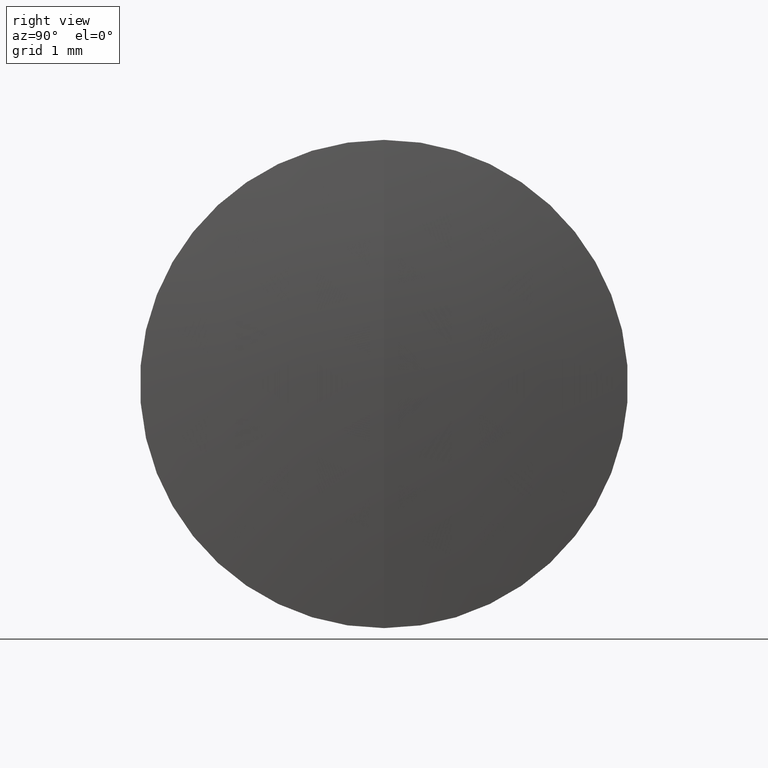
[diagram: clean part render]
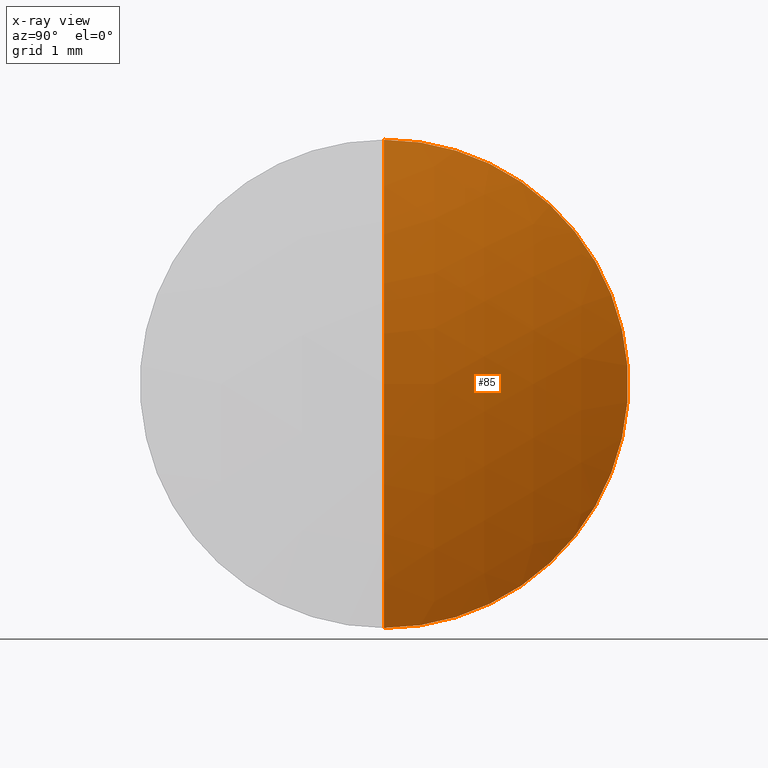
[diagram: x-ray — body ghosted, one internal face saturated and labeled with its STEP entity id]
A machine part, right view, then the same camera in x-ray: the body is ghosted and one INTERNAL B-rep face — a face not visible from any outside direction — is saturated and labeled: STEP entity #85.
In plain terms, the highlighted spherical surface has radius 9.2 mm.
Its self-contained STEP definition (entity closure, byte-faithful):
#4 = EDGE_CURVE ( 'NONE', #117, #208, #312, .T. ) ;
#21 = ORIENTED_EDGE ( 'NONE', *, *, #4, .F. ) ;
#39 = AXIS2_PLACEMENT_3D ( 'NONE', #75, #233, #244 ) ;
#47 = SPHERICAL_SURFACE ( 'NONE', #345, 9.199999999999999300 ) ;
#68 = FACE_OUTER_BOUND ( 'NONE', #204, .T. ) ;
#71 = CARTESIAN_POINT ( 'NONE',  ( 1.655750400079076800, 0.0000000000000000000, 4.000000000000000000 ) ) ;
#75 = CARTESIAN_POINT ( 'NONE',  ( 1.655750400079076800, 0.0000000000000000000, 0.0000000000000000000 ) ) ;
#85 = ADVANCED_FACE ( 'NONE', ( #68 ), #47, .T. ) ;
#86 = EDGE_CURVE ( 'NONE', #288, #208, #313, .T. ) ;
#92 = DIRECTION ( 'NONE',  ( 0.0000000000000000000, 0.0000000000000000000, 1.000000000000000000 ) ) ;
#100 = CARTESIAN_POINT ( 'NONE',  ( -6.629175670804114500, 0.0000000000000000000, 1.127419418155393700E-016 ) ) ;
#112 = CARTESIAN_POINT ( 'NONE',  ( 1.655750400079076800, 4.898587196589412800E-016, -4.000000000000000000 ) ) ;
#116 = EDGE_CURVE ( 'NONE', #288, #117, #254, .T. ) ;
#117 = VERTEX_POINT ( 'NONE', #71 ) ;
#118 = DIRECTION ( 'NONE',  ( 0.0000000000000000000, -1.224646799147353200E-016, 1.000000000000000000 ) ) ;
#121 = AXIS2_PLACEMENT_3D ( 'NONE', #185, #347, #125 ) ;
#125 = DIRECTION ( 'NONE',  ( 0.0000000000000000000, 0.0000000000000000000, -1.000000000000000000 ) ) ;
#138 = ORIENTED_EDGE ( 'NONE', *, *, #86, .T. ) ;
#176 = CARTESIAN_POINT ( 'NONE',  ( -6.629175670804114500, 0.0000000000000000000, 1.127419418155393700E-016 ) ) ;
#185 = CARTESIAN_POINT ( 'NONE',  ( -6.629175670804114500, 0.0000000000000000000, 1.127419418155393700E-016 ) ) ;
#197 = ORIENTED_EDGE ( 'NONE', *, *, #116, .F. ) ;
#204 = EDGE_LOOP ( 'NONE', ( #197, #138, #21 ) ) ;
#208 = VERTEX_POINT ( 'NONE', #112 ) ;
#222 = DIRECTION ( 'NONE',  ( -0.0000000000000000000, 1.000000000000000000, 1.224646799147353200E-016 ) ) ;
#233 = DIRECTION ( 'NONE',  ( -1.000000000000000000, -0.0000000000000000000, -0.0000000000000000000 ) ) ;
#244 = DIRECTION ( 'NONE',  ( 0.0000000000000000000, 0.0000000000000000000, 1.000000000000000000 ) ) ;
#254 = CIRCLE ( 'NONE', #121, 9.199999999999999300 ) ;
#288 = VERTEX_POINT ( 'NONE', #331 ) ;
#298 = AXIS2_PLACEMENT_3D ( 'NONE', #100, #222, #118 ) ;
#300 = DIRECTION ( 'NONE',  ( 0.0000000000000000000, 1.000000000000000000, 0.0000000000000000000 ) ) ;
#312 = CIRCLE ( 'NONE', #39, 4.000000000000000000 ) ;
#313 = CIRCLE ( 'NONE', #298, 9.199999999999999300 ) ;
#331 = CARTESIAN_POINT ( 'NONE',  ( 2.570824329195885200, 0.0000000000000000000, 6.760794694233218000E-016 ) ) ;
#345 = AXIS2_PLACEMENT_3D ( 'NONE', #176, #300, #92 ) ;
#347 = DIRECTION ( 'NONE',  ( 0.0000000000000000000, -1.000000000000000000, 0.0000000000000000000 ) ) ;